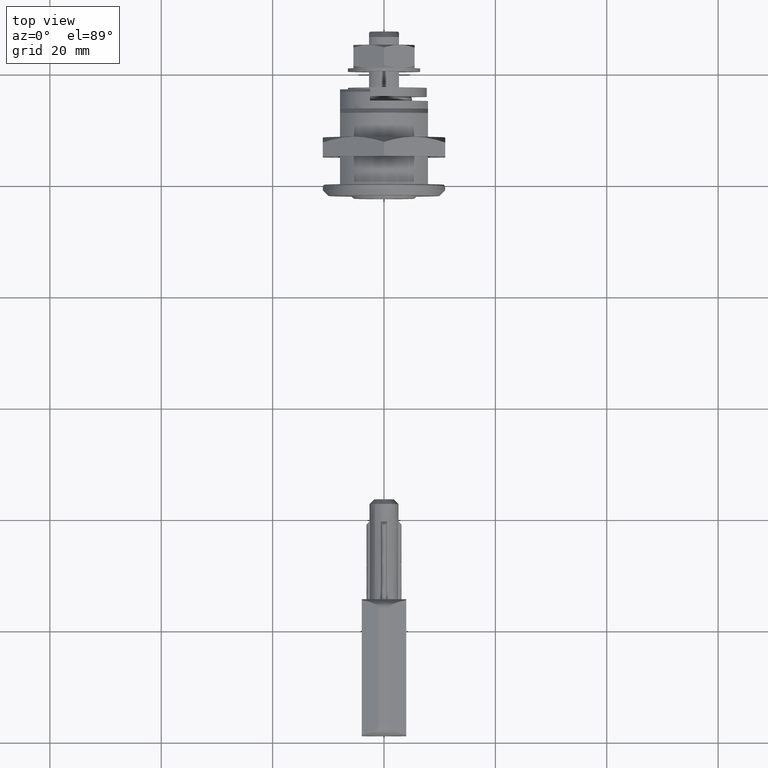
[diagram: clean part render]
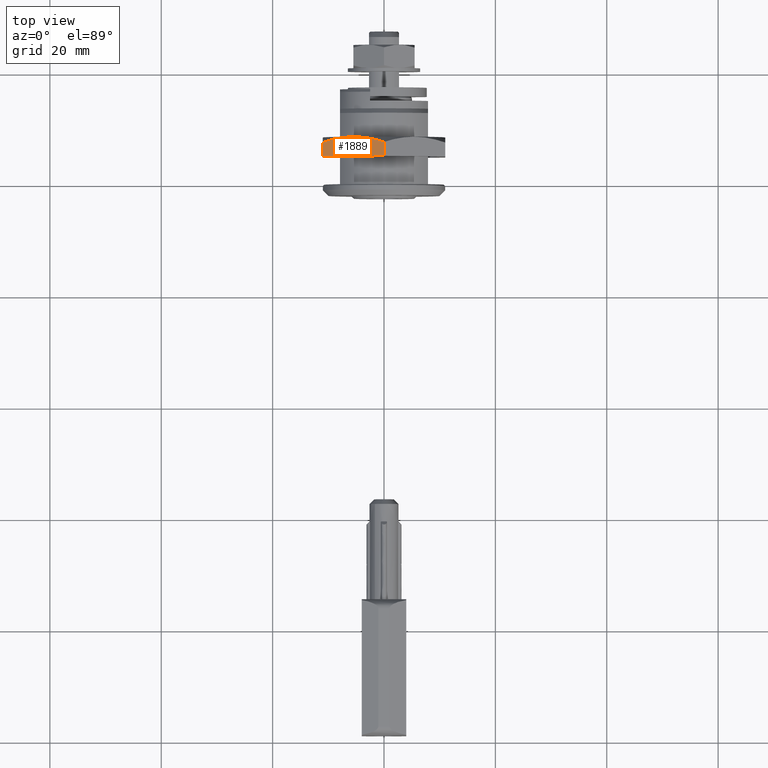
[diagram: same view with one face highlighted and labeled with its STEP entity id]
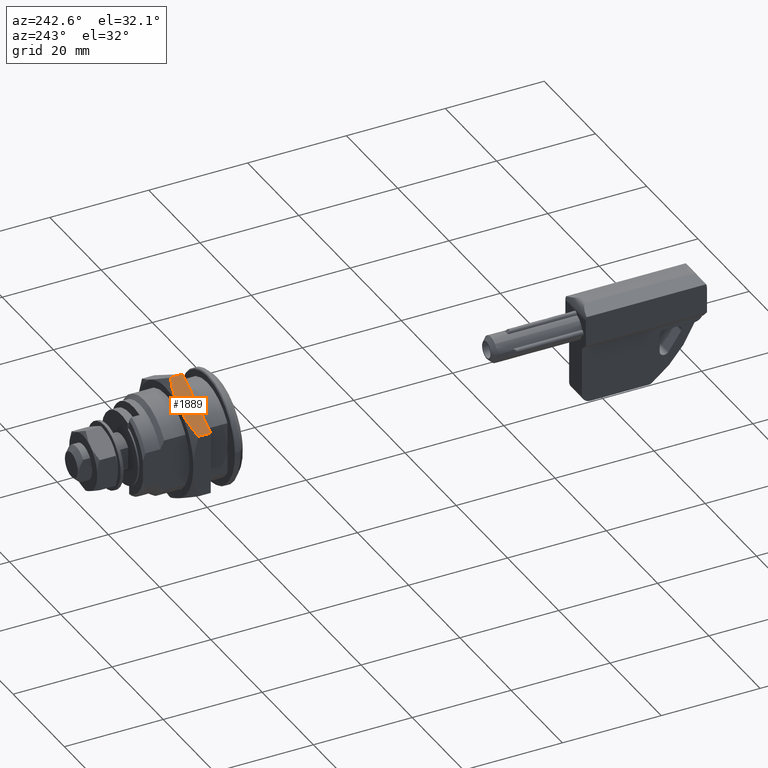
[diagram: same view with one face highlighted and labeled with its STEP entity id]
A machine part, top view. The second image highlights one B-rep face of the part: STEP entity #1889.
A second angle (auxiliary view) of the same face is appended — the face is thin or edge-on in the first view.
In plain terms, the highlighted face is a freeform B-spline surface patch.
Its self-contained STEP definition (entity closure, byte-faithful):
#1535=CARTESIAN_POINT('',(-11.0,7.500000000000000,6.350853116742710));
#1536=VERTEX_POINT('',#1535);
#1553=CARTESIAN_POINT('',(4.592274E-016,7.500000000000000,12.701706000000060));
#1554=VERTEX_POINT('',#1553);
#1555=CARTESIAN_POINT('',(-11.0,7.500000000000000,6.350853116742710));
#1556=CARTESIAN_POINT('',(-10.101954270696710,7.799348617362725,6.869339910998964));
#1557=CARTESIAN_POINT('',(-9.197361174370251,8.046066038376019,7.391606985070270));
#1558=CARTESIAN_POINT('',(-7.826322234729039,8.302403828568636,8.183176695641917));
#1559=CARTESIAN_POINT('',(-7.366945383786720,8.368847909366536,8.448398047443122));
#1560=CARTESIAN_POINT('',(-6.442841742668677,8.458730874725234,8.981929539939925));
#1561=CARTESIAN_POINT('',(-5.978110329577480,8.482132598230812,9.250242349677063));
#1562=CARTESIAN_POINT('',(-5.276710552413839,8.482648504424120,9.655195704794556));
#1563=CARTESIAN_POINT('',(-5.041725660455135,8.477038678222918,9.790864297084969));
#1564=CARTESIAN_POINT('',(-4.573887833494575,8.454435749916080,10.060970595727770));
#1565=CARTESIAN_POINT('',(-4.340781640869427,8.437468780395349,10.195554520438931));
#1566=CARTESIAN_POINT('',(-3.643795706674883,8.370306931547567,10.597959542098840));
#1567=CARTESIAN_POINT('',(-3.182254062358084,8.303813094896746,10.864430737952850));
#1568=CARTESIAN_POINT('',(-1.805846244324531,8.047049790867980,11.659100171947550));
#1569=CARTESIAN_POINT('',(-0.899165167560070,7.799721727758914,12.182572742101570));
#1570=CARTESIAN_POINT('',(4.592274E-016,7.500000000000000,12.701706000000060));
#1571=B_SPLINE_CURVE_WITH_KNOTS('',3,(#1555,#1556,#1557,#1558,#1559,#1560,#1561,#1562,#1563,#1564,#1565,#1566,#1567,#1568,#1569,#1570),.UNSPECIFIED.,.F.,.U.,(4,2,2,2,2,2,2,4),(0.0,0.250000000000000,0.375000000000001,0.500000000000001,0.562500000000001,0.625000000000001,0.750000000000000,1.0),.UNSPECIFIED.);
#1572=EDGE_CURVE('',#1536,#1554,#1571,.T.);
#1741=CARTESIAN_POINT('',(-11.0,5.0,6.350852961075090));
#1742=VERTEX_POINT('',#1741);
#1743=CARTESIAN_POINT('',(-1.000414E-011,5.0,12.701705922176600));
#1744=VERTEX_POINT('',#1743);
#1745=CARTESIAN_POINT('',(-11.0,5.0,6.350852961075090));
#1746=CARTESIAN_POINT('',(-1.000414E-011,5.0,12.701705922176600));
#1747=QUASI_UNIFORM_CURVE('',1,(#1745,#1746),.UNSPECIFIED.,.F.,.U.);
#1748=EDGE_CURVE('',#1742,#1744,#1747,.T.);
#1805=CARTESIAN_POINT('',(-11.0,7.500000000000000,6.350853116742710));
#1806=CARTESIAN_POINT('',(-11.0,5.0,6.350852961075090));
#1807=QUASI_UNIFORM_CURVE('',1,(#1805,#1806),.UNSPECIFIED.,.F.,.U.);
#1808=EDGE_CURVE('',#1536,#1742,#1807,.T.);
#1868=CARTESIAN_POINT('',(4.592274E-016,7.500000000000000,12.701706000000060));
#1869=CARTESIAN_POINT('',(-1.000414E-011,5.0,12.701705922176600));
#1870=QUASI_UNIFORM_CURVE('',1,(#1868,#1869),.UNSPECIFIED.,.F.,.U.);
#1871=EDGE_CURVE('',#1554,#1744,#1870,.T.);
#1878=CARTESIAN_POINT('',(0.549450014063866,4.826050111366904,13.018931035698291));
#1879=CARTESIAN_POINT('',(-11.549450275411740,4.826050111366904,6.033627696672046));
#1880=CARTESIAN_POINT('',(0.549450014063866,8.656430370084905,13.018931035698291));
#1881=CARTESIAN_POINT('',(-11.549450275411740,8.656430370084905,6.033627696672046));
#1882=B_SPLINE_SURFACE_WITH_KNOTS('',1,1,((#1878,#1880),(#1879,#1881)),.UNSPECIFIED.,.F.,.F.,.U.,(2,2),(2,2),(0.0,13.970606678053890),(0.0,3.830380258718001),.UNSPECIFIED.);
#1883=ORIENTED_EDGE('',*,*,#1572,.F.);
#1884=ORIENTED_EDGE('',*,*,#1808,.T.);
#1885=ORIENTED_EDGE('',*,*,#1748,.T.);
#1886=ORIENTED_EDGE('',*,*,#1871,.F.);
#1887=EDGE_LOOP('',(#1883,#1884,#1885,#1886));
#1888=FACE_OUTER_BOUND('',#1887,.T.);
#1889=ADVANCED_FACE('',(#1888),#1882,.F.);